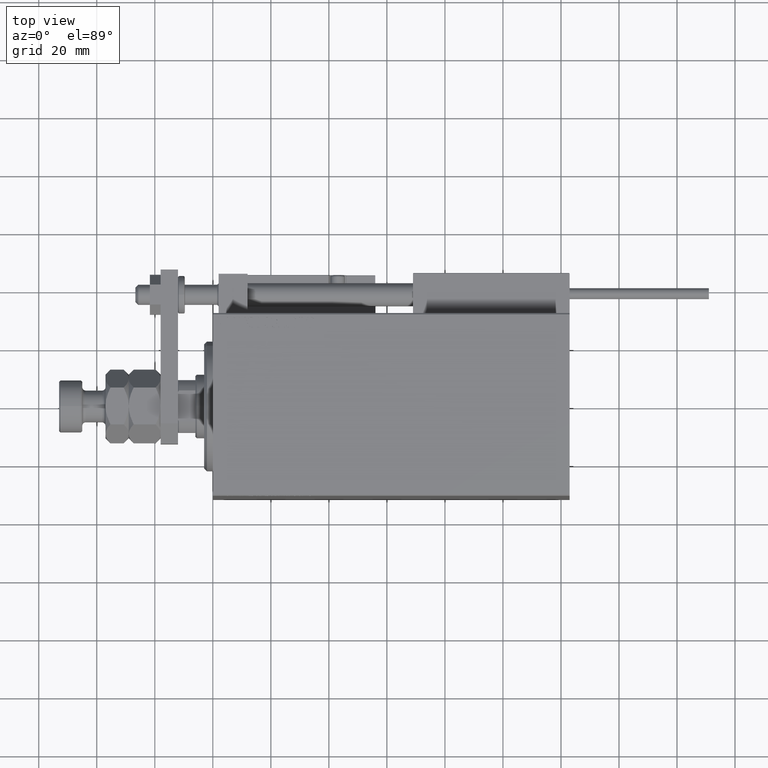
[diagram: clean part render]
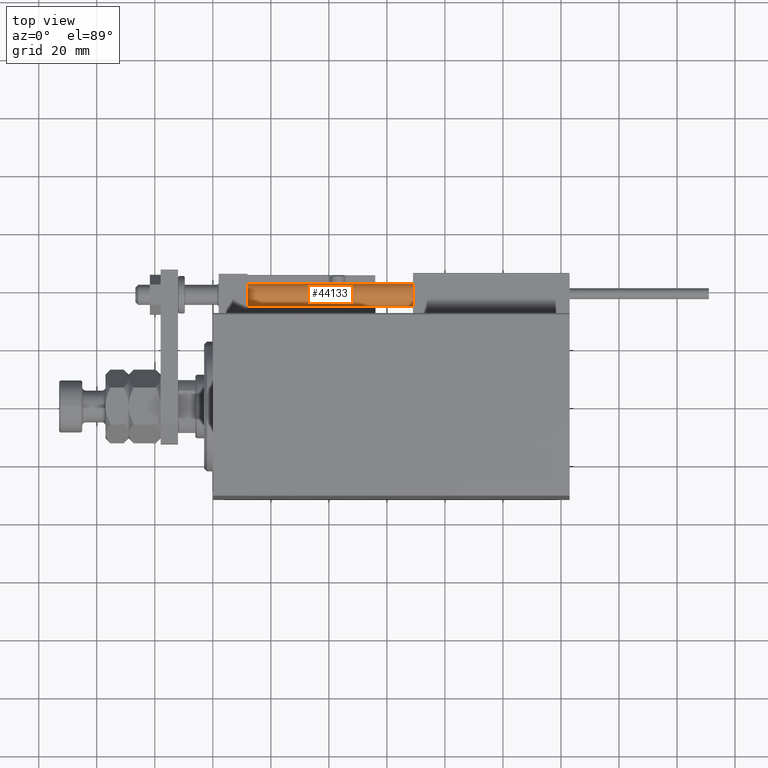
[diagram: same view with one face highlighted and labeled with its STEP entity id]
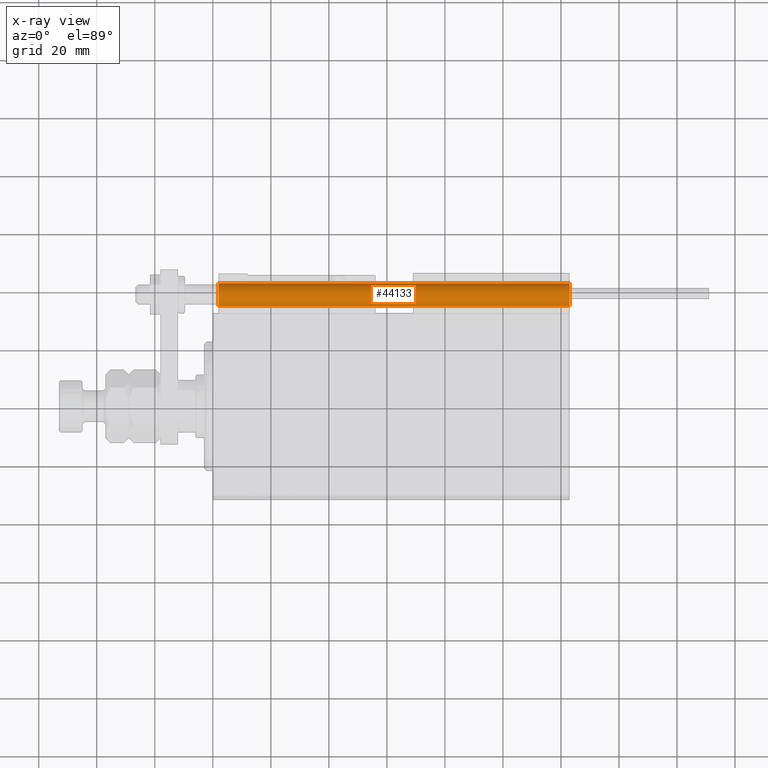
[diagram: x-ray of the same camera — body ghosted, the highlighted face saturated]
A machine part, top view. The second image highlights one B-rep face of the part: STEP entity #44133.
The next image is the same camera in x-ray: the body ghosted, the highlighted face saturated — about 4% of this face is hidden behind the body in this view.
In plain terms, the highlighted cylindrical surface (edge-blend (fillet) strip) has radius 4 mm, axis along (-1, 0, 0).
Its self-contained STEP definition (entity closure, byte-faithful):
#1302 = DIRECTION ( 'NONE',  ( -0.000000000000000000, -0.000000000000000000, 1.000000000000000000 ) ) ;
#1324 = EDGE_CURVE ( 'NONE', #29793, #38264, #45662, .T. ) ;
#1358 = VERTEX_POINT ( 'NONE', #33375 ) ;
#1697 = DIRECTION ( 'NONE',  ( 1.000000000000000000, 0.000000000000000000, 0.000000000000000000 ) ) ;
#5742 = CARTESIAN_POINT ( 'NONE',  ( 0.000000000000000000, 0.000000000000000000, 2.000000000000029310 ) ) ;
#6752 = CARTESIAN_POINT ( 'NONE',  ( 4.000000000000000000, 4.898587196589412829E-16, 123.0000000000000000 ) ) ;
#7082 = CARTESIAN_POINT ( 'NONE',  ( 4.000000000000000000, 4.898587196589412829E-16, 2.000000000000029310 ) ) ;
#7230 = ORIENTED_EDGE ( 'NONE', *, *, #1324, .F. ) ;
#10436 = FACE_OUTER_BOUND ( 'NONE', #39062, .T. ) ;
#11465 = LINE ( 'NONE', #6752, #34155 ) ;
#13867 = ORIENTED_EDGE ( 'NONE', *, *, #28966, .F. ) ;
#14369 = CARTESIAN_POINT ( 'NONE',  ( 0.000000000000000000, 0.000000000000000000, 123.0000000000000000 ) ) ;
#16404 = VERTEX_POINT ( 'NONE', #7082 ) ;
#17424 = DIRECTION ( 'NONE',  ( -0.000000000000000000, -0.000000000000000000, -1.000000000000000000 ) ) ;
#18547 = DIRECTION ( 'NONE',  ( -0.000000000000000000, -0.000000000000000000, -1.000000000000000000 ) ) ;
#19352 = CYLINDRICAL_SURFACE ( 'NONE', #22309, 4.000000000000000000 ) ;
#19862 = EDGE_CURVE ( 'NONE', #16404, #38264, #36239, .T. ) ;
#21320 = CIRCLE ( 'NONE', #50565, 4.000000000000000000 ) ;
#22113 = VECTOR ( 'NONE', #17424, 1000.000000000000000 ) ;
#22218 = DIRECTION ( 'NONE',  ( -1.000000000000000000, 0.000000000000000000, 0.000000000000000000 ) ) ;
#22309 = AXIS2_PLACEMENT_3D ( 'NONE', #14369, #30842, #22218 ) ;
#23697 = AXIS2_PLACEMENT_3D ( 'NONE', #5742, #1302, #42108 ) ;
#26016 = ORIENTED_EDGE ( 'NONE', *, *, #19862, .T. ) ;
#28966 = EDGE_CURVE ( 'NONE', #1358, #29793, #21320, .T. ) ;
#29793 = VERTEX_POINT ( 'NONE', #49988 ) ;
#30842 = DIRECTION ( 'NONE',  ( -0.000000000000000000, -0.000000000000000000, -1.000000000000000000 ) ) ;
#32848 = CARTESIAN_POINT ( 'NONE',  ( 0.000000000000000000, 0.000000000000000000, 123.0000000000000000 ) ) ;
#33375 = CARTESIAN_POINT ( 'NONE',  ( 4.000000000000000000, 4.898587196589412829E-16, 123.0000000000000000 ) ) ;
#34155 = VECTOR ( 'NONE', #18547, 1000.000000000000000 ) ;
#36239 = CIRCLE ( 'NONE', #23697, 4.000000000000000000 ) ;
#38264 = VERTEX_POINT ( 'NONE', #38881 ) ;
#38881 = CARTESIAN_POINT ( 'NONE',  ( -4.000000000000000000, 0.000000000000000000, 2.000000000000029310 ) ) ;
#39062 = EDGE_LOOP ( 'NONE', ( #13867, #41100, #26016, #7230 ) ) ;
#41100 = ORIENTED_EDGE ( 'NONE', *, *, #47777, .T. ) ;
#42108 = DIRECTION ( 'NONE',  ( 1.000000000000000000, 0.000000000000000000, 0.000000000000000000 ) ) ;
#44133 = ADVANCED_FACE ( 'NONE', ( #10436 ), #19352, .T. ) ;
#45145 = DIRECTION ( 'NONE',  ( 0.000000000000000000, 0.000000000000000000, 1.000000000000000000 ) ) ;
#45662 = LINE ( 'NONE', #49595, #22113 ) ;
#47777 = EDGE_CURVE ( 'NONE', #1358, #16404, #11465, .T. ) ;
#49595 = CARTESIAN_POINT ( 'NONE',  ( -4.000000000000000000, 0.000000000000000000, 123.0000000000000000 ) ) ;
#49988 = CARTESIAN_POINT ( 'NONE',  ( -4.000000000000000000, 0.000000000000000000, 123.0000000000000000 ) ) ;
#50565 = AXIS2_PLACEMENT_3D ( 'NONE', #32848, #45145, #1697 ) ;